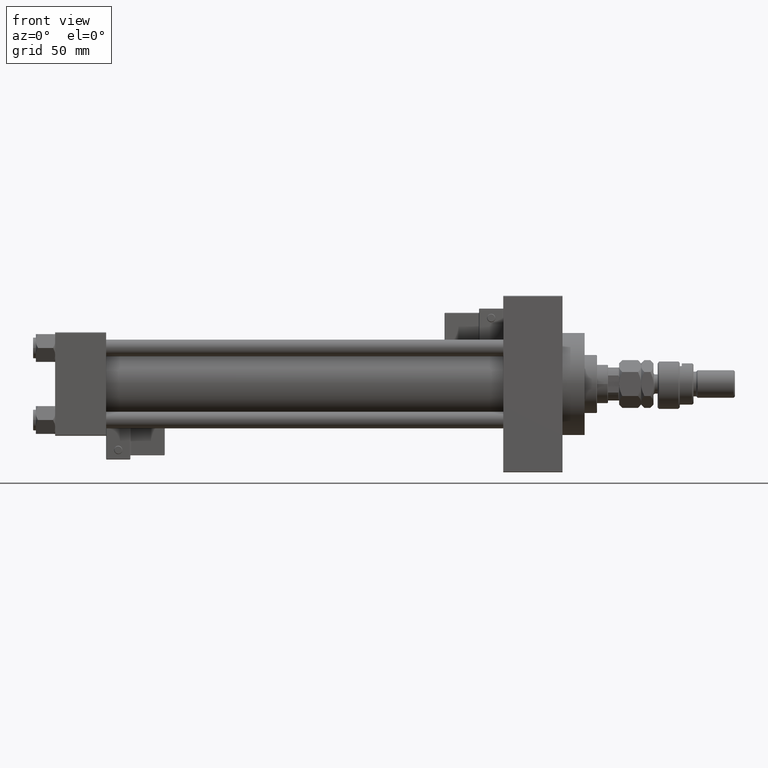
[diagram: clean part render]
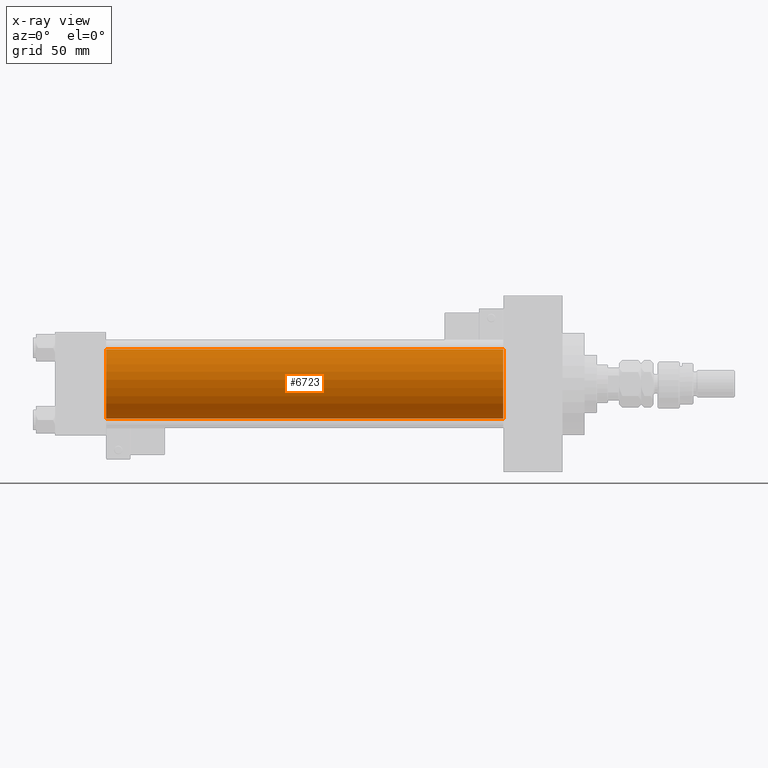
[diagram: x-ray — body ghosted, one internal face saturated and labeled with its STEP entity id]
A machine part, front view, then the same camera in x-ray: the body is ghosted and one INTERNAL B-rep face — a face not visible from any outside direction — is saturated and labeled: STEP entity #6723.
In plain terms, the highlighted cylindrical surface (edge-blend (fillet) strip) has radius 25 mm, axis along (-1, -0, -0).
Its self-contained STEP definition (entity closure, byte-faithful):
#985 = CARTESIAN_POINT ( 'NONE',  ( 324.9999999999999432, -2.602085213965210642E-15, 0.000000000000000000 ) ) ;
#1285 = CYLINDRICAL_SURFACE ( 'NONE', #31935, 25.00000000000000000 ) ;
#1386 = LINE ( 'NONE', #13806, #13323 ) ;
#2255 = EDGE_CURVE ( 'NONE', #46107, #16082, #24209, .T. ) ;
#5516 = DIRECTION ( 'NONE',  ( 0.000000000000000000, 0.000000000000000000, 1.000000000000000000 ) ) ;
#6723 = ADVANCED_FACE ( 'NONE', ( #38253 ), #1285, .F. ) ;
#7842 = VERTEX_POINT ( 'NONE', #16021 ) ;
#11665 = DIRECTION ( 'NONE',  ( 0.000000000000000000, 0.000000000000000000, -1.000000000000000000 ) ) ;
#13323 = VECTOR ( 'NONE', #29914, 1000.000000000000000 ) ;
#13806 = CARTESIAN_POINT ( 'NONE',  ( 324.9999999999999432, 4.595317839031724996E-16, -25.00000000000000000 ) ) ;
#16021 = CARTESIAN_POINT ( 'NONE',  ( 37.00000000000000000, 4.595317839031724996E-16, -25.00000000000000000 ) ) ;
#16082 = VERTEX_POINT ( 'NONE', #36519 ) ;
#18029 = EDGE_LOOP ( 'NONE', ( #49917, #31744, #38353, #27538 ) ) ;
#18580 = EDGE_CURVE ( 'NONE', #22104, #7842, #1386, .T. ) ;
#22104 = VERTEX_POINT ( 'NONE', #33083 ) ;
#24209 = LINE ( 'NONE', #43258, #50462 ) ;
#24687 = CARTESIAN_POINT ( 'NONE',  ( 324.9999999999999432, -2.602085213965210642E-15, 25.00000000000000000 ) ) ;
#27518 = CIRCLE ( 'NONE', #28373, 25.00000000000000000 ) ;
#27538 = ORIENTED_EDGE ( 'NONE', *, *, #2255, .F. ) ;
#27748 = EDGE_CURVE ( 'NONE', #46107, #22104, #50662, .T. ) ;
#28373 = AXIS2_PLACEMENT_3D ( 'NONE', #51826, #47866, #11665 ) ;
#29914 = DIRECTION ( 'NONE',  ( -1.000000000000000000, -0.000000000000000000, -0.000000000000000000 ) ) ;
#30063 = DIRECTION ( 'NONE',  ( -1.000000000000000000, -0.000000000000000000, -0.000000000000000000 ) ) ;
#31744 = ORIENTED_EDGE ( 'NONE', *, *, #18580, .T. ) ;
#31930 = DIRECTION ( 'NONE',  ( 0.000000000000000000, 0.000000000000000000, -1.000000000000000000 ) ) ;
#31935 = AXIS2_PLACEMENT_3D ( 'NONE', #49647, #30063, #5516 ) ;
#33083 = CARTESIAN_POINT ( 'NONE',  ( 324.9999999999999432, 4.595317839031724996E-16, -25.00000000000000000 ) ) ;
#34621 = AXIS2_PLACEMENT_3D ( 'NONE', #985, #44603, #31930 ) ;
#36519 = CARTESIAN_POINT ( 'NONE',  ( 37.00000000000000000, -2.602085213965210642E-15, 25.00000000000000000 ) ) ;
#38253 = FACE_OUTER_BOUND ( 'NONE', #18029, .T. ) ;
#38353 = ORIENTED_EDGE ( 'NONE', *, *, #48178, .F. ) ;
#39554 = DIRECTION ( 'NONE',  ( -1.000000000000000000, -0.000000000000000000, -0.000000000000000000 ) ) ;
#43258 = CARTESIAN_POINT ( 'NONE',  ( 324.9999999999999432, -2.602085213965210642E-15, 25.00000000000000000 ) ) ;
#44603 = DIRECTION ( 'NONE',  ( 1.000000000000000000, 0.000000000000000000, 0.000000000000000000 ) ) ;
#46107 = VERTEX_POINT ( 'NONE', #24687 ) ;
#47866 = DIRECTION ( 'NONE',  ( 1.000000000000000000, 0.000000000000000000, 0.000000000000000000 ) ) ;
#48178 = EDGE_CURVE ( 'NONE', #16082, #7842, #27518, .T. ) ;
#49647 = CARTESIAN_POINT ( 'NONE',  ( 324.9999999999999432, -2.602085213965210642E-15, 0.000000000000000000 ) ) ;
#49917 = ORIENTED_EDGE ( 'NONE', *, *, #27748, .T. ) ;
#50462 = VECTOR ( 'NONE', #39554, 1000.000000000000000 ) ;
#50662 = CIRCLE ( 'NONE', #34621, 25.00000000000000000 ) ;
#51826 = CARTESIAN_POINT ( 'NONE',  ( 37.00000000000000000, -2.602085213965210642E-15, 0.000000000000000000 ) ) ;